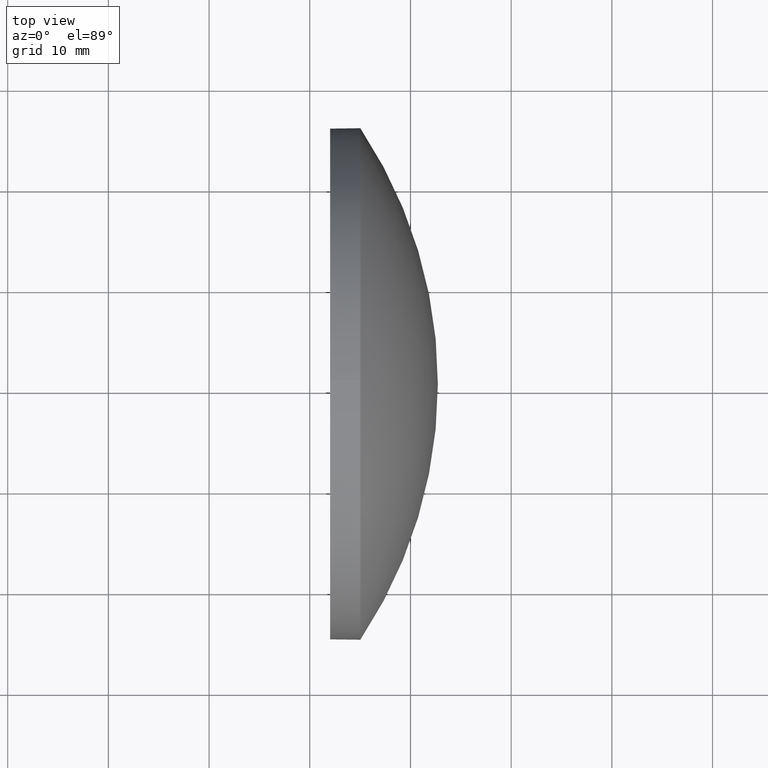
[diagram: clean part render]
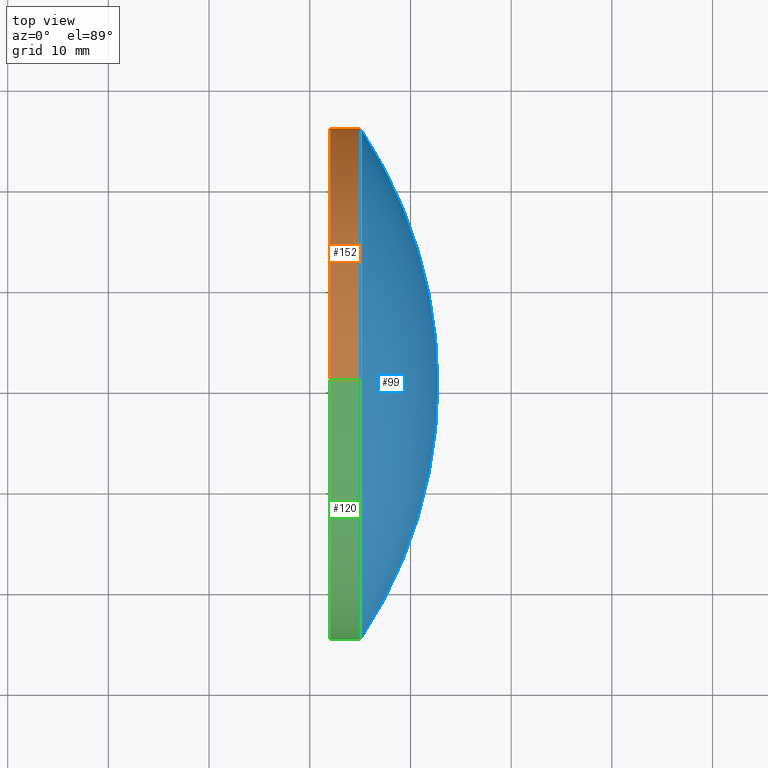
[diagram: same view with three faces highlighted in distinct colors, each labeled with its STEP entity id]
A machine part, top view with three faces highlighted in distinct colors.
Their STEP definitions:

[orange] entity #152 — the highlighted cylindrical surface (partial cylindrical patch) has radius 25.4 mm, axis along (-1, -0, -0).
#5 = ORIENTED_EDGE ( 'NONE', *, *, #41, .T. ) ;
#11 = DIRECTION ( 'NONE',  ( -1.000000000000000000, -0.0000000000000000000, -0.0000000000000000000 ) ) ;
#15 = CIRCLE ( 'NONE', #171, 25.40000000000000600 ) ;
#16 = AXIS2_PLACEMENT_3D ( 'NONE', #164, #129, #101 ) ;
#19 = CYLINDRICAL_SURFACE ( 'NONE', #31, 25.40000000000000600 ) ;
#20 = CARTESIAN_POINT ( 'NONE',  ( 220.3307464569769000, 130.4671098528243900, -25.40000000000000600 ) ) ;
#23 = EDGE_LOOP ( 'NONE', ( #122, #5, #141, #162, #117 ) ) ;
#26 = DIRECTION ( 'NONE',  ( -1.000000000000000000, -0.0000000000000000000, -0.0000000000000000000 ) ) ;
#31 = AXIS2_PLACEMENT_3D ( 'NONE', #165, #26, #155 ) ;
#35 = VERTEX_POINT ( 'NONE', #79 ) ;
#38 = DIRECTION ( 'NONE',  ( -1.000000000000000000, -0.0000000000000000000, -0.0000000000000000000 ) ) ;
#41 = EDGE_CURVE ( 'NONE', #109, #185, #59, .T. ) ;
#48 = CIRCLE ( 'NONE', #160, 25.40000000000000600 ) ;
#57 = VERTEX_POINT ( 'NONE', #67 ) ;
#59 = LINE ( 'NONE', #20, #95 ) ;
#60 = CARTESIAN_POINT ( 'NONE',  ( 232.0208200792423800, 130.4671098528243900, 0.0000000000000000000 ) ) ;
#65 = LINE ( 'NONE', #102, #133 ) ;
#66 = DIRECTION ( 'NONE',  ( -1.000000000000000000, -0.0000000000000000000, -0.0000000000000000000 ) ) ;
#67 = CARTESIAN_POINT ( 'NONE',  ( 232.0208200792423800, 130.4671098528243900, 25.40000000000000600 ) ) ;
#79 = CARTESIAN_POINT ( 'NONE',  ( 235.0208200792423800, 130.4671098528243900, 25.40000000000000600 ) ) ;
#95 = VECTOR ( 'NONE', #66, 1000.000000000000000 ) ;
#101 = DIRECTION ( 'NONE',  ( 0.0000000000000000000, 0.0000000000000000000, 1.000000000000000000 ) ) ;
#102 = CARTESIAN_POINT ( 'NONE',  ( 220.3307464569769000, 130.4671098528243900, 25.40000000000000600 ) ) ;
#109 = VERTEX_POINT ( 'NONE', #163 ) ;
#113 = CARTESIAN_POINT ( 'NONE',  ( 232.0208200792423800, 130.4671098528243900, -25.40000000000000600 ) ) ;
#117 = ORIENTED_EDGE ( 'NONE', *, *, #124, .T. ) ;
#119 = EDGE_CURVE ( 'NONE', #57, #185, #48, .T. ) ;
#122 = ORIENTED_EDGE ( 'NONE', *, *, #173, .T. ) ;
#124 = EDGE_CURVE ( 'NONE', #35, #148, #169, .T. ) ;
#129 = DIRECTION ( 'NONE',  ( -1.000000000000000000, -0.0000000000000000000, -0.0000000000000000000 ) ) ;
#133 = VECTOR ( 'NONE', #11, 1000.000000000000000 ) ;
#134 = EDGE_CURVE ( 'NONE', #35, #57, #65, .T. ) ;
#141 = ORIENTED_EDGE ( 'NONE', *, *, #119, .F. ) ;
#145 = FACE_OUTER_BOUND ( 'NONE', #23, .T. ) ;
#148 = VERTEX_POINT ( 'NONE', #168 ) ;
#152 = ADVANCED_FACE ( 'NONE', ( #145 ), #19, .T. ) ;
#153 = CARTESIAN_POINT ( 'NONE',  ( 235.0208200792423800, 130.4671098528243900, 0.0000000000000000000 ) ) ;
#155 = DIRECTION ( 'NONE',  ( 0.0000000000000000000, 0.0000000000000000000, 1.000000000000000000 ) ) ;
#160 = AXIS2_PLACEMENT_3D ( 'NONE', #60, #38, #179 ) ;
#162 = ORIENTED_EDGE ( 'NONE', *, *, #134, .F. ) ;
#163 = CARTESIAN_POINT ( 'NONE',  ( 235.0208200792423800, 130.4671098528243900, -25.40000000000000600 ) ) ;
#164 = CARTESIAN_POINT ( 'NONE',  ( 235.0208200792423800, 130.4671098528243900, 0.0000000000000000000 ) ) ;
#165 = CARTESIAN_POINT ( 'NONE',  ( 220.3307464569769000, 130.4671098528243900, 0.0000000000000000000 ) ) ;
#167 = DIRECTION ( 'NONE',  ( 0.0000000000000000000, 0.0000000000000000000, 1.000000000000000000 ) ) ;
#168 = CARTESIAN_POINT ( 'NONE',  ( 235.0208200792423800, 155.8671098528244000, 0.0000000000000000000 ) ) ;
#169 = CIRCLE ( 'NONE', #16, 25.40000000000000600 ) ;
#171 = AXIS2_PLACEMENT_3D ( 'NONE', #153, #177, #167 ) ;
#173 = EDGE_CURVE ( 'NONE', #148, #109, #15, .T. ) ;
#177 = DIRECTION ( 'NONE',  ( -1.000000000000000000, -0.0000000000000000000, -0.0000000000000000000 ) ) ;
#179 = DIRECTION ( 'NONE',  ( 0.0000000000000000000, 0.0000000000000000000, 1.000000000000000000 ) ) ;
#185 = VERTEX_POINT ( 'NONE', #113 ) ;

[blue] entity #99 — the highlighted spherical surface has radius 45.7435 mm.
#8 = DIRECTION ( 'NONE',  ( -0.0000000000000000000, 0.0000000000000000000, 1.000000000000000000 ) ) ;
#10 = DIRECTION ( 'NONE',  ( 0.0000000000000000000, 0.0000000000000000000, 1.000000000000000000 ) ) ;
#16 = AXIS2_PLACEMENT_3D ( 'NONE', #164, #129, #101 ) ;
#17 = AXIS2_PLACEMENT_3D ( 'NONE', #81, #123, #138 ) ;
#25 = AXIS2_PLACEMENT_3D ( 'NONE', #142, #100, #10 ) ;
#33 = FACE_OUTER_BOUND ( 'NONE', #131, .T. ) ;
#35 = VERTEX_POINT ( 'NONE', #79 ) ;
#50 = EDGE_CURVE ( 'NONE', #118, #78, #56, .T. ) ;
#55 = CARTESIAN_POINT ( 'NONE',  ( 196.9773135857358000, 130.4671098528243900, 0.0000000000000000000 ) ) ;
#56 = CIRCLE ( 'NONE', #17, 45.74350649350655800 ) ;
#64 = AXIS2_PLACEMENT_3D ( 'NONE', #55, #110, #83 ) ;
#68 = CARTESIAN_POINT ( 'NONE',  ( 235.0208200792423800, 105.0671098528243900, -3.110602869834276900E-015 ) ) ;
#72 = CIRCLE ( 'NONE', #151, 45.74350649350655800 ) ;
#78 = VERTEX_POINT ( 'NONE', #68 ) ;
#79 = CARTESIAN_POINT ( 'NONE',  ( 235.0208200792423800, 130.4671098528243900, 25.40000000000000600 ) ) ;
#81 = CARTESIAN_POINT ( 'NONE',  ( 196.9773135857358000, 130.4671098528243900, 0.0000000000000000000 ) ) ;
#83 = DIRECTION ( 'NONE',  ( 0.0000000000000000000, 1.000000000000000000, 0.0000000000000000000 ) ) ;
#97 = CARTESIAN_POINT ( 'NONE',  ( 242.7208200792423700, 130.4671098528243900, 0.0000000000000000000 ) ) ;
#99 = ADVANCED_FACE ( 'NONE', ( #33 ), #116, .T. ) ;
#100 = DIRECTION ( 'NONE',  ( -1.000000000000000000, -0.0000000000000000000, -0.0000000000000000000 ) ) ;
#101 = DIRECTION ( 'NONE',  ( 0.0000000000000000000, 0.0000000000000000000, 1.000000000000000000 ) ) ;
#110 = DIRECTION ( 'NONE',  ( -0.0000000000000000000, 0.0000000000000000000, -1.000000000000000000 ) ) ;
#111 = CARTESIAN_POINT ( 'NONE',  ( 196.9773135857358000, 130.4671098528243900, 0.0000000000000000000 ) ) ;
#112 = ORIENTED_EDGE ( 'NONE', *, *, #114, .T. ) ;
#114 = EDGE_CURVE ( 'NONE', #118, #148, #72, .T. ) ;
#116 = SPHERICAL_SURFACE ( 'NONE', #64, 45.74350649350655800 ) ;
#118 = VERTEX_POINT ( 'NONE', #97 ) ;
#123 = DIRECTION ( 'NONE',  ( 0.0000000000000000000, 1.224646799147353200E-016, -1.000000000000000000 ) ) ;
#124 = EDGE_CURVE ( 'NONE', #35, #148, #169, .T. ) ;
#127 = DIRECTION ( 'NONE',  ( 1.000000000000000000, 0.0000000000000000000, 0.0000000000000000000 ) ) ;
#129 = DIRECTION ( 'NONE',  ( -1.000000000000000000, -0.0000000000000000000, -0.0000000000000000000 ) ) ;
#131 = EDGE_LOOP ( 'NONE', ( #156, #112, #150, #184 ) ) ;
#138 = DIRECTION ( 'NONE',  ( 0.0000000000000000000, 1.000000000000000000, 1.224646799147353200E-016 ) ) ;
#142 = CARTESIAN_POINT ( 'NONE',  ( 235.0208200792423800, 130.4671098528243900, 0.0000000000000000000 ) ) ;
#148 = VERTEX_POINT ( 'NONE', #168 ) ;
#150 = ORIENTED_EDGE ( 'NONE', *, *, #124, .F. ) ;
#151 = AXIS2_PLACEMENT_3D ( 'NONE', #111, #8, #127 ) ;
#156 = ORIENTED_EDGE ( 'NONE', *, *, #50, .F. ) ;
#164 = CARTESIAN_POINT ( 'NONE',  ( 235.0208200792423800, 130.4671098528243900, 0.0000000000000000000 ) ) ;
#168 = CARTESIAN_POINT ( 'NONE',  ( 235.0208200792423800, 155.8671098528244000, 0.0000000000000000000 ) ) ;
#169 = CIRCLE ( 'NONE', #16, 25.40000000000000600 ) ;
#174 = CIRCLE ( 'NONE', #25, 25.40000000000000600 ) ;
#184 = ORIENTED_EDGE ( 'NONE', *, *, #186, .F. ) ;
#186 = EDGE_CURVE ( 'NONE', #78, #35, #174, .T. ) ;

[green] entity #120 — the highlighted cylindrical surface (partial cylindrical patch) has radius 25.4 mm, axis along (-1, -0, -0).
#10 = DIRECTION ( 'NONE',  ( 0.0000000000000000000, 0.0000000000000000000, 1.000000000000000000 ) ) ;
#11 = DIRECTION ( 'NONE',  ( -1.000000000000000000, -0.0000000000000000000, -0.0000000000000000000 ) ) ;
#14 = AXIS2_PLACEMENT_3D ( 'NONE', #27, #86, #71 ) ;
#20 = CARTESIAN_POINT ( 'NONE',  ( 220.3307464569769000, 130.4671098528243900, -25.40000000000000600 ) ) ;
#24 = CARTESIAN_POINT ( 'NONE',  ( 235.0208200792423800, 130.4671098528243900, 0.0000000000000000000 ) ) ;
#25 = AXIS2_PLACEMENT_3D ( 'NONE', #142, #100, #10 ) ;
#27 = CARTESIAN_POINT ( 'NONE',  ( 220.3307464569769000, 130.4671098528243900, 0.0000000000000000000 ) ) ;
#32 = CIRCLE ( 'NONE', #77, 25.40000000000000600 ) ;
#35 = VERTEX_POINT ( 'NONE', #79 ) ;
#39 = ORIENTED_EDGE ( 'NONE', *, *, #157, .F. ) ;
#41 = EDGE_CURVE ( 'NONE', #109, #185, #59, .T. ) ;
#42 = DIRECTION ( 'NONE',  ( 0.0000000000000000000, 0.0000000000000000000, 1.000000000000000000 ) ) ;
#57 = VERTEX_POINT ( 'NONE', #67 ) ;
#59 = LINE ( 'NONE', #20, #95 ) ;
#65 = LINE ( 'NONE', #102, #133 ) ;
#66 = DIRECTION ( 'NONE',  ( -1.000000000000000000, -0.0000000000000000000, -0.0000000000000000000 ) ) ;
#67 = CARTESIAN_POINT ( 'NONE',  ( 232.0208200792423800, 130.4671098528243900, 25.40000000000000600 ) ) ;
#68 = CARTESIAN_POINT ( 'NONE',  ( 235.0208200792423800, 105.0671098528243900, -3.110602869834276900E-015 ) ) ;
#69 = ORIENTED_EDGE ( 'NONE', *, *, #166, .T. ) ;
#71 = DIRECTION ( 'NONE',  ( 0.0000000000000000000, 0.0000000000000000000, 1.000000000000000000 ) ) ;
#77 = AXIS2_PLACEMENT_3D ( 'NONE', #24, #125, #42 ) ;
#78 = VERTEX_POINT ( 'NONE', #68 ) ;
#79 = CARTESIAN_POINT ( 'NONE',  ( 235.0208200792423800, 130.4671098528243900, 25.40000000000000600 ) ) ;
#82 = ORIENTED_EDGE ( 'NONE', *, *, #134, .T. ) ;
#85 = CARTESIAN_POINT ( 'NONE',  ( 232.0208200792423800, 130.4671098528243900, 0.0000000000000000000 ) ) ;
#86 = DIRECTION ( 'NONE',  ( -1.000000000000000000, -0.0000000000000000000, -0.0000000000000000000 ) ) ;
#94 = CYLINDRICAL_SURFACE ( 'NONE', #14, 25.40000000000000600 ) ;
#95 = VECTOR ( 'NONE', #66, 1000.000000000000000 ) ;
#100 = DIRECTION ( 'NONE',  ( -1.000000000000000000, -0.0000000000000000000, -0.0000000000000000000 ) ) ;
#102 = CARTESIAN_POINT ( 'NONE',  ( 220.3307464569769000, 130.4671098528243900, 25.40000000000000600 ) ) ;
#105 = CIRCLE ( 'NONE', #146, 25.40000000000000600 ) ;
#109 = VERTEX_POINT ( 'NONE', #163 ) ;
#113 = CARTESIAN_POINT ( 'NONE',  ( 232.0208200792423800, 130.4671098528243900, -25.40000000000000600 ) ) ;
#120 = ADVANCED_FACE ( 'NONE', ( #140 ), #94, .T. ) ;
#125 = DIRECTION ( 'NONE',  ( -1.000000000000000000, -0.0000000000000000000, -0.0000000000000000000 ) ) ;
#128 = DIRECTION ( 'NONE',  ( -1.000000000000000000, -0.0000000000000000000, -0.0000000000000000000 ) ) ;
#133 = VECTOR ( 'NONE', #11, 1000.000000000000000 ) ;
#134 = EDGE_CURVE ( 'NONE', #35, #57, #65, .T. ) ;
#140 = FACE_OUTER_BOUND ( 'NONE', #172, .T. ) ;
#142 = CARTESIAN_POINT ( 'NONE',  ( 235.0208200792423800, 130.4671098528243900, 0.0000000000000000000 ) ) ;
#146 = AXIS2_PLACEMENT_3D ( 'NONE', #85, #128, #180 ) ;
#157 = EDGE_CURVE ( 'NONE', #185, #57, #105, .T. ) ;
#163 = CARTESIAN_POINT ( 'NONE',  ( 235.0208200792423800, 130.4671098528243900, -25.40000000000000600 ) ) ;
#166 = EDGE_CURVE ( 'NONE', #109, #78, #32, .T. ) ;
#170 = ORIENTED_EDGE ( 'NONE', *, *, #186, .T. ) ;
#172 = EDGE_LOOP ( 'NONE', ( #182, #69, #170, #82, #39 ) ) ;
#174 = CIRCLE ( 'NONE', #25, 25.40000000000000600 ) ;
#180 = DIRECTION ( 'NONE',  ( 0.0000000000000000000, 0.0000000000000000000, 1.000000000000000000 ) ) ;
#182 = ORIENTED_EDGE ( 'NONE', *, *, #41, .F. ) ;
#185 = VERTEX_POINT ( 'NONE', #113 ) ;
#186 = EDGE_CURVE ( 'NONE', #78, #35, #174, .T. ) ;